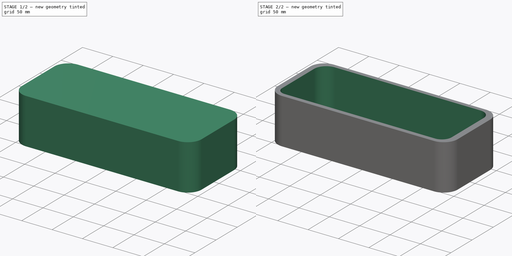
[diagram: build sequence overview — one tinted view per stage of 2, left to right]
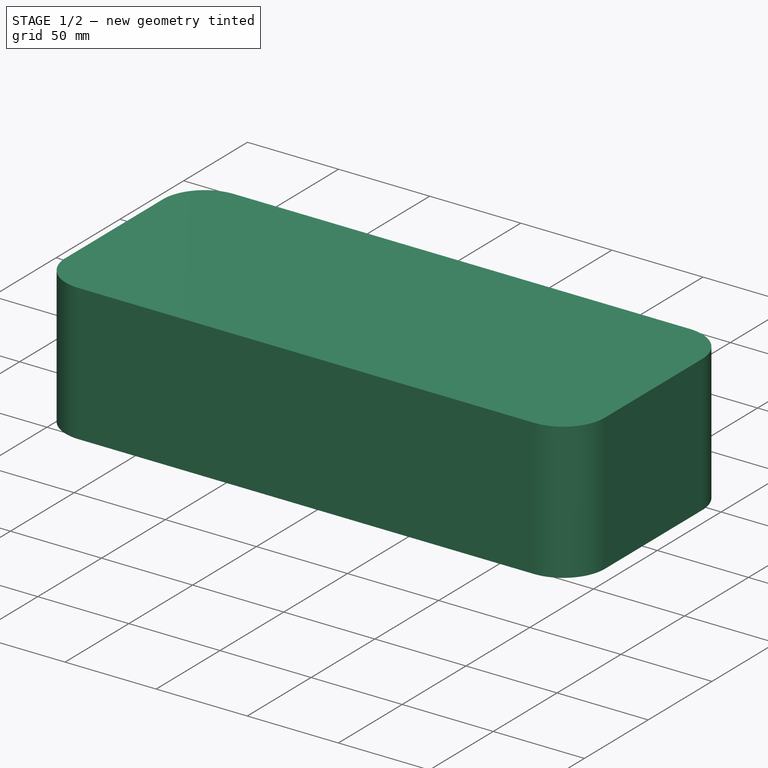
[diagram: stage 1 of 2 — iso view after this stage's code; geometry added in this stage tinted green]
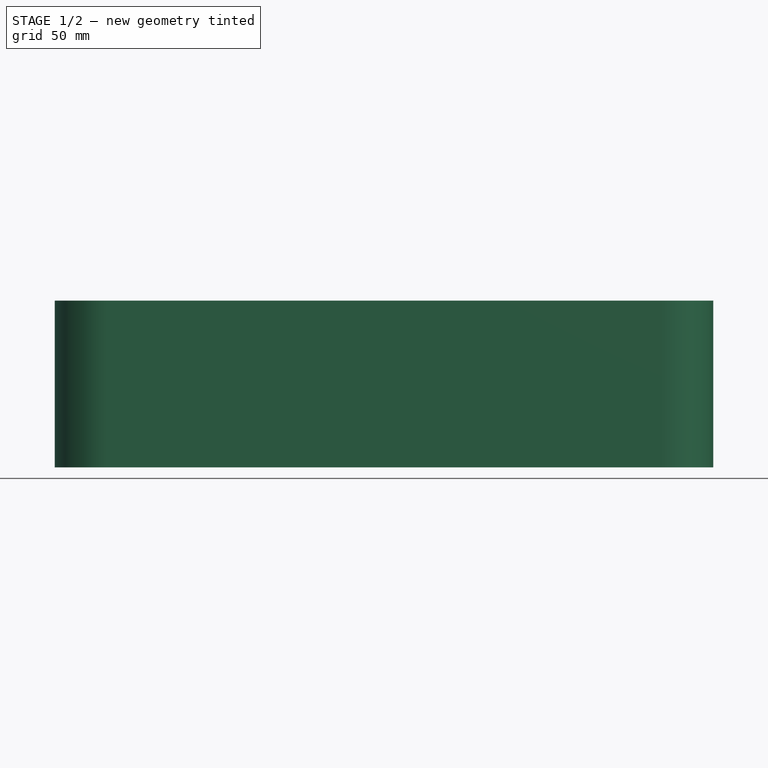
[diagram: stage 1 of 2 — front view after this stage's code; geometry added in this stage tinted green]
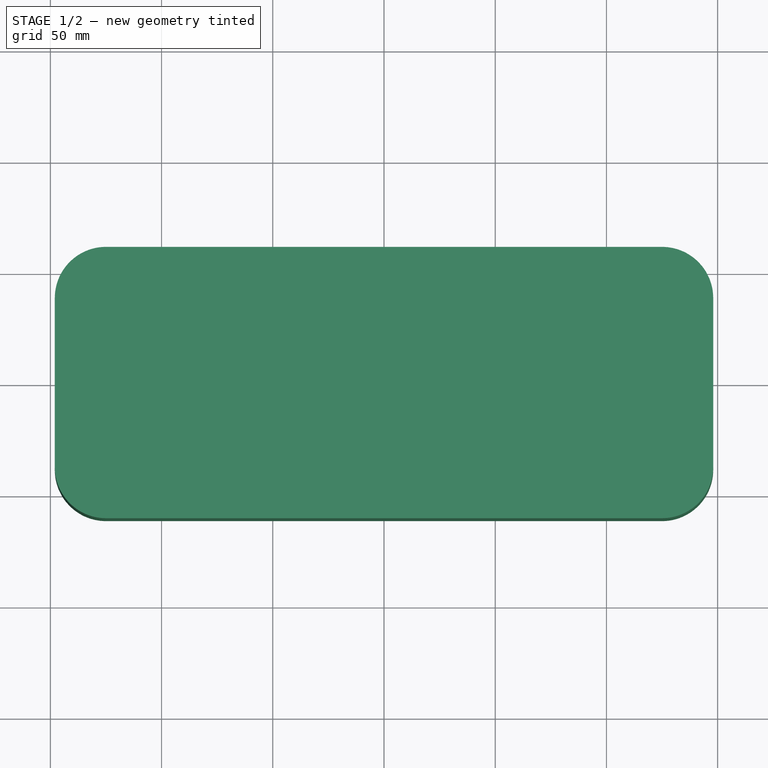
[diagram: stage 1 of 2 — top view after this stage's code; geometry added in this stage tinted green]
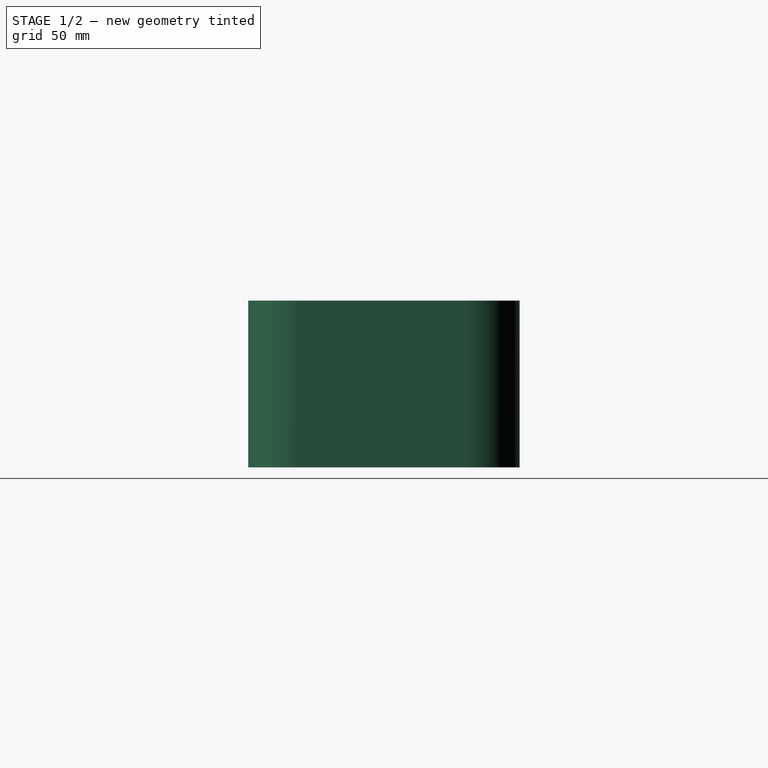
[diagram: stage 1 of 2 — right view after this stage's code; geometry added in this stage tinted green]
FCSTD DOCUMENT  (FreeCAD 0.19R24267 +148 (Git))
Label: Electronic enclosure
License: All rights reserved
LicenseURL: http://en.wikipedia.org/wiki/All_rights_reserved
objects: Sketcher::SketchObject×2, PartDesign::Pad×1, Spreadsheet::Sheet×1, PartDesign::Pocket×1, PartDesign::Body×1
note: 7 computed .brp shape members not serialized (recipe doc carries the construction recipe); baked Part::Feature solids carry a one-line shape summary decoded from their .brp

FEATURE [Sketcher::SketchObject] Sketch
  FullyConstrained = true
  MapMode = 5
  Support = -> [XY_Plane]
  sketch-geometry (8):
    g0: LineSegment StartX=-125 StartY=61 StartZ=0 EndX=125 EndY=61 EndZ=0
    g1: LineSegment StartX=148 StartY=38 StartZ=0 EndX=148 EndY=-38 EndZ=0
    g2: LineSegment StartX=125 StartY=-61 StartZ=0 EndX=-125 EndY=-61 EndZ=0
    g3: LineSegment StartX=-148 StartY=-38 StartZ=0 EndX=-148 EndY=38 EndZ=0
    g4: ArcOfCircle CenterX=-125 CenterY=38 CenterZ=0 NormalX=0 NormalY=0 NormalZ=1 AngleXU=0 Radius=23 StartAngle=1.5708 EndAngle=3.14159
    g5: ArcOfCircle CenterX=125 CenterY=38 CenterZ=0 NormalX=0 NormalY=0 NormalZ=1 AngleXU=0 Radius=23 StartAngle=0 EndAngle=1.5708
    g6: ArcOfCircle CenterX=125 CenterY=-38 CenterZ=0 NormalX=0 NormalY=0 NormalZ=1 AngleXU=0 Radius=23 StartAngle=4.71239 EndAngle=6.28319
    g7: ArcOfCircle CenterX=-125 CenterY=-38 CenterZ=0 NormalX=0 NormalY=0 NormalZ=1 AngleXU=0 Radius=23 StartAngle=3.14159 EndAngle=4.71239
  constraints (19):
    c: Horizontal(g0)
    c: Horizontal(g2)
    c: Vertical(g1)
    c: Vertical(g3)
    c: Tangent(g0,g4) = 1.5708
    c: Tangent(g3,g4) = 1.5708
    c: Tangent(g0,g5) = 1.5708
    c: Tangent(g1,g5) = 1.5708
    c: Tangent(g1,g6) = 1.5708
    c: Tangent(g2,g6) = 1.5708
    c: Tangent(g2,g7) = 1.5708
    c: Tangent(g3,g7) = 1.5708
    c: Symmetric(g4,g6,g-1)
    c: Equal(g4,g7)
    c: Equal(g6,g5)
    c: Radius(g4) = 23
    c: DistanceX(g0,g0) = 250
    c: DistanceY(g2,g0) = 122
    c: Radius(g6) = 23
FEATURE [PartDesign::Pad] Pad
  Direction = (1,1,1)
  Length = 75
  Length2 = 100
  Profile = -> Sketch
  Type = 0
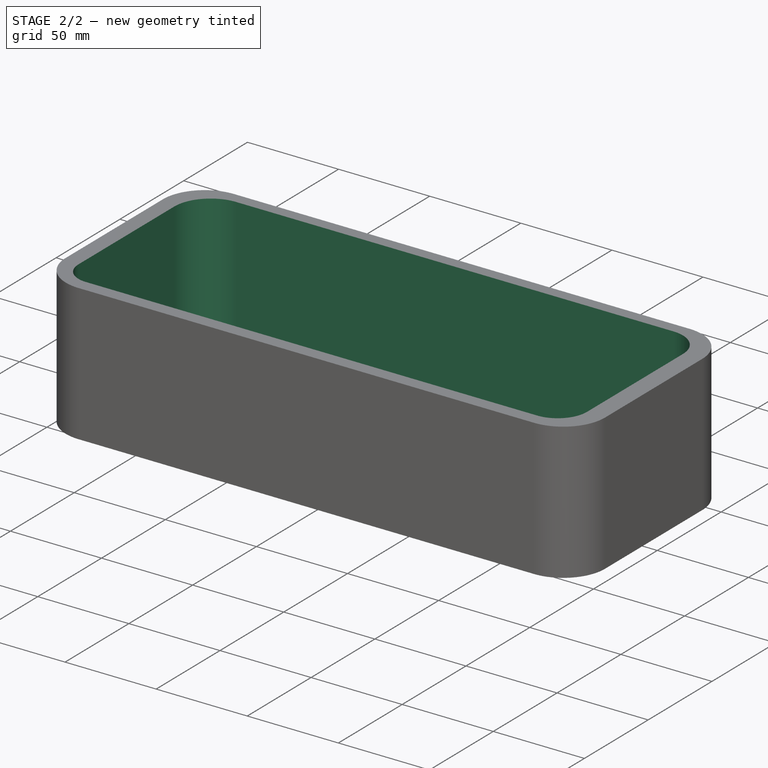
[diagram: stage 2 of 2 — iso view after this stage's code; geometry added in this stage tinted green]
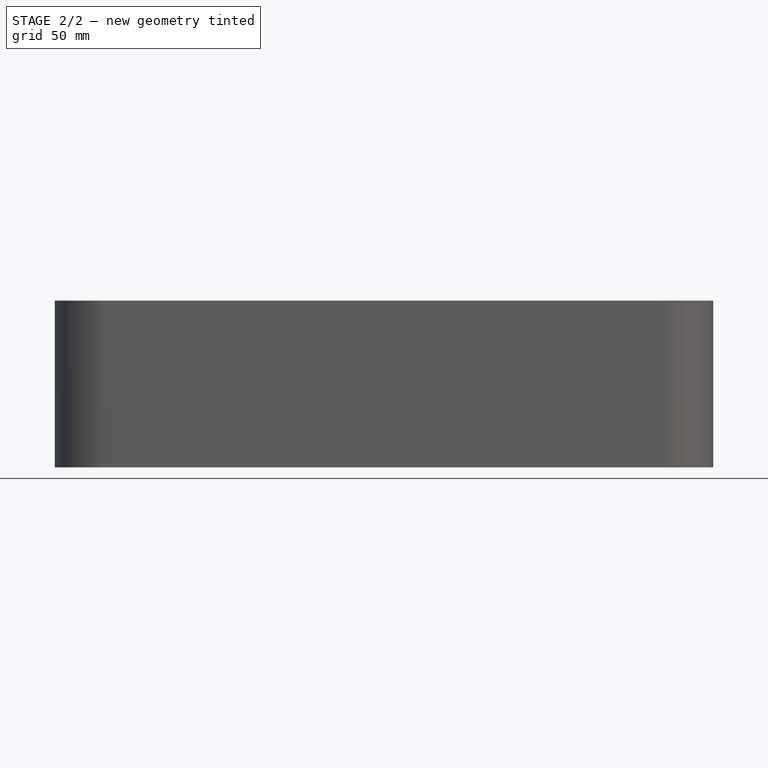
[diagram: stage 2 of 2 — front view after this stage's code; geometry added in this stage tinted green]
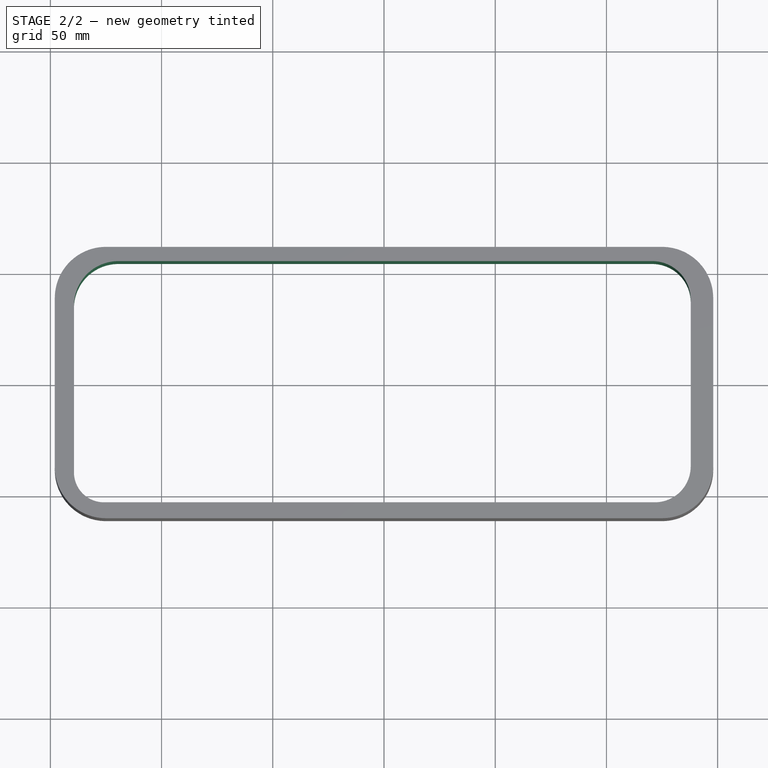
[diagram: stage 2 of 2 — top view after this stage's code; geometry added in this stage tinted green]
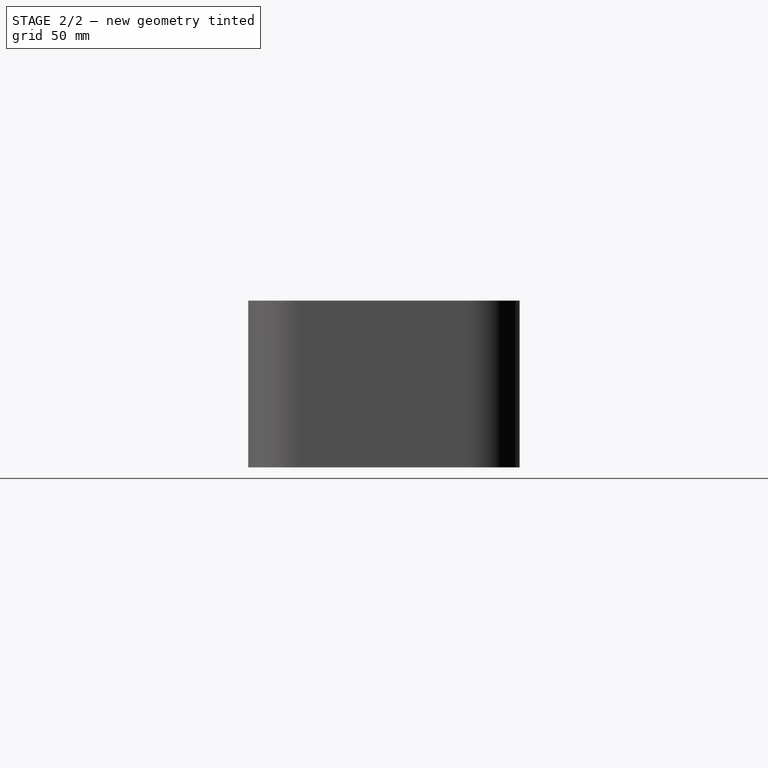
[diagram: stage 2 of 2 — right view after this stage's code; geometry added in this stage tinted green]
FEATURE [Spreadsheet::Sheet] Spreadsheet
  cells = A2=box_length; B2=200; A3=box_width; B3=150; A4=box_height; B4=75; A5=exterior_radius; B5==B7 + 2; A6=interior_radius; B6==B5 - B7; A7=box_wall_thickness; B7=4; A8=hole_diameter; B8=6; A9=lug_height; B9==B4 - B7 * 2; A10=lug_radius; B10==B8 * 2.5; A11=hole_center_length; B11==B13 / 2 - B8; A12=hole_center_width; B12==B14 - B8; A13=box_inside_height; B13==B2 - B7 * 2; A14=box_outside_width; B14==B3 - B7 * 2
FEATURE [Sketcher::SketchObject] Sketch001
  FullyConstrained = false
  MapMode = 5
  Support = -> [XY_Plane]
  sketch-geometry (8):
    g0: LineSegment StartX=-119.429 StartY=54.601 StartZ=0 EndX=120.571 EndY=54.601 EndZ=0
    g1: LineSegment StartX=137.883 StartY=37.2892 StartZ=0 EndX=137.883 EndY=-37.7108 EndZ=0
    g2: LineSegment StartX=121.747 StartY=-53.8466 StartZ=0 EndX=-125.901 EndY=-53.8466 EndZ=0
    g3: LineSegment StartX=-139.389 StartY=-40.3585 StartZ=0 EndX=-139.389 EndY=34.6415 EndZ=0
    g4: ArcOfCircle CenterX=-119.429 CenterY=34.6415 CenterZ=0 NormalX=0 NormalY=0 NormalZ=1 AngleXU=0 Radius=19.9595 StartAngle=1.5708 EndAngle=3.14159
    g5: ArcOfCircle CenterX=-125.901 CenterY=-40.3585 CenterZ=0 NormalX=0 NormalY=0 NormalZ=1 AngleXU=0 Radius=13.4881 StartAngle=3.14159 EndAngle=4.71239
    g6: ArcOfCircle CenterX=120.571 CenterY=37.2892 CenterZ=0 NormalX=0 NormalY=0 NormalZ=1 AngleXU=0 Radius=17.3118 StartAngle=0 EndAngle=1.5708
    g7: ArcOfCircle CenterX=121.747 CenterY=-37.7108 CenterZ=0 NormalX=0 NormalY=0 NormalZ=1 AngleXU=0 Radius=16.1358 StartAngle=4.71239 EndAngle=6.28319
  constraints (15):
    c: Horizontal(g0)
    c: Horizontal(g2)
    c: Vertical(g1)
    c: Vertical(g3)
    c: Tangent(g0,g4) = 1.5708
    c: Tangent(g3,g4) = 1.5708
    c: Tangent(g2,g5) = 1.5708
    c: Tangent(g3,g5) = 1.5708
    c: Tangent(g0,g6) = 1.5708
    c: Tangent(g1,g6) = 1.5708
    c: Tangent(g1,g7) = 1.5708
    c: Tangent(g2,g7) = 1.5708
    c: DistanceX(g0,g0) = 240
    c: DistanceY(g3,g3) = 75
    c: DistanceY(g1,g1) = 75
FEATURE [PartDesign::Pocket] Pocket
  BaseFeature = -> Pad
  Length = 5
  Length2 = 100
  Profile = -> Sketch001
  Reversed = true
  Type = 1
FEATURE [PartDesign::Body] Body
  Group = -> [Sketch,Pad,Sketch001,Pocket]
  Origin = -> Origin
  Tip = -> Pocket
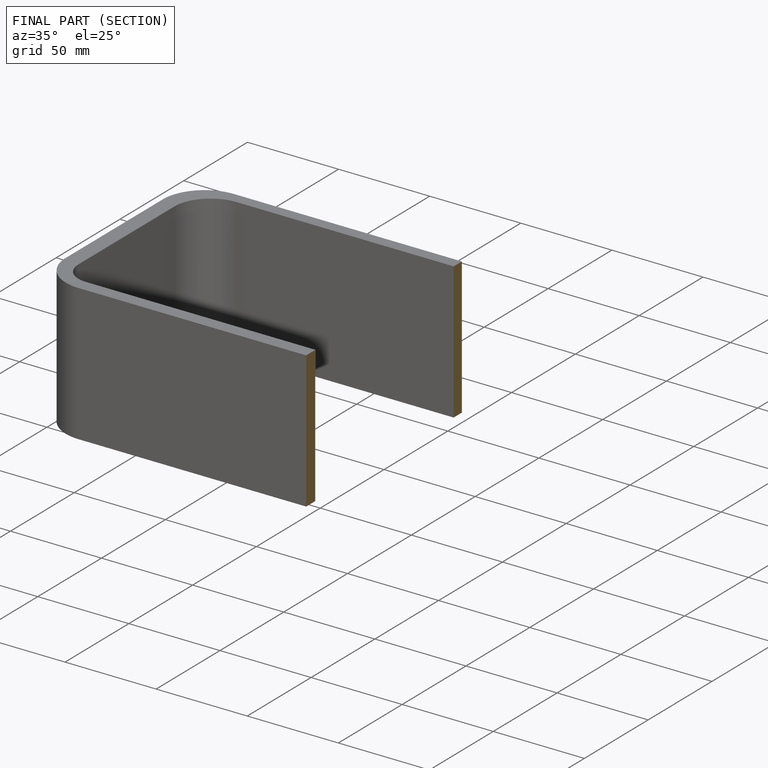
[diagram: finished part — half-section view (interior)]
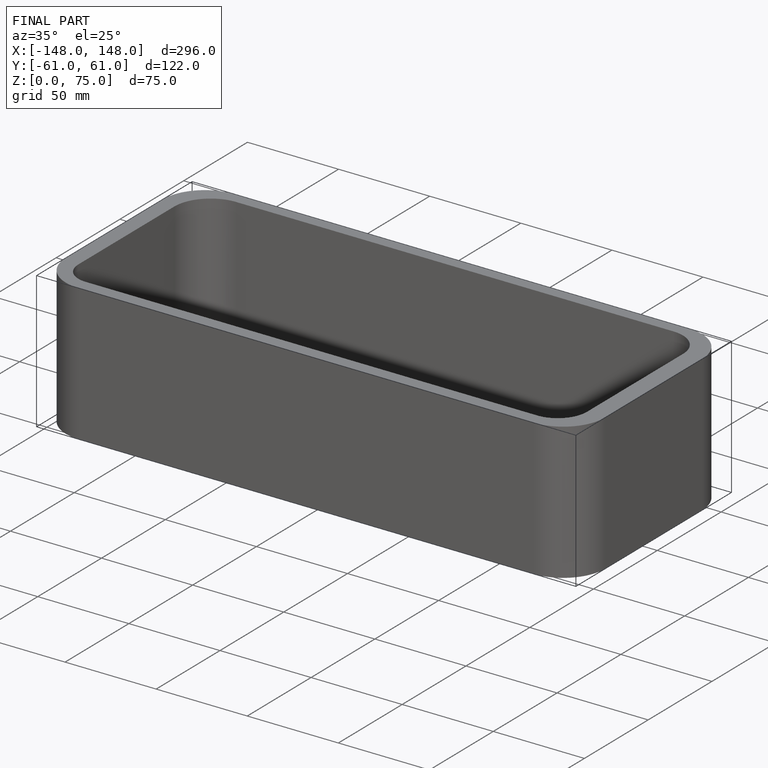
[diagram: finished part — iso view with bounding-box wireframe]
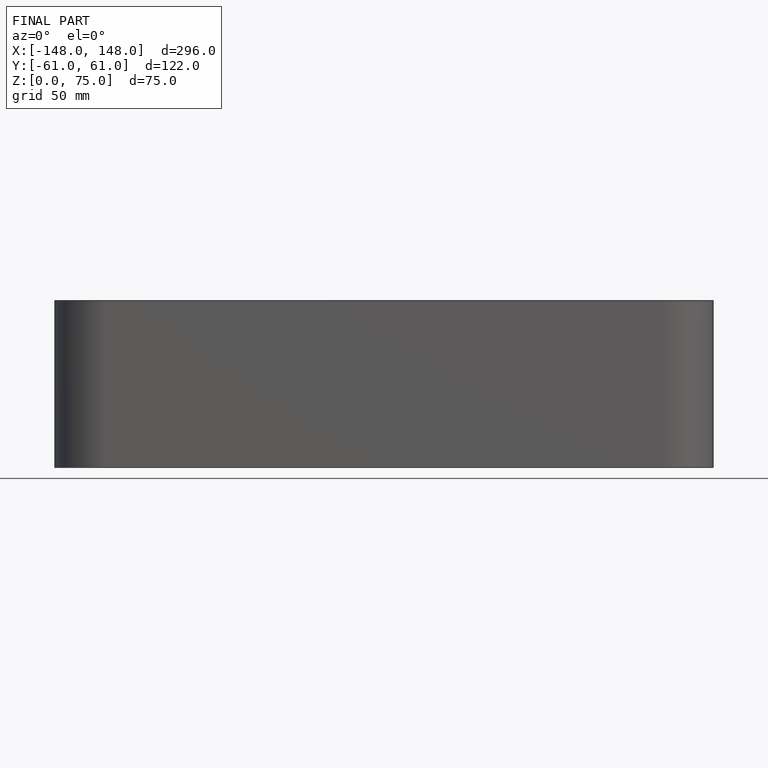
[diagram: finished part — front view with bounding-box wireframe]
